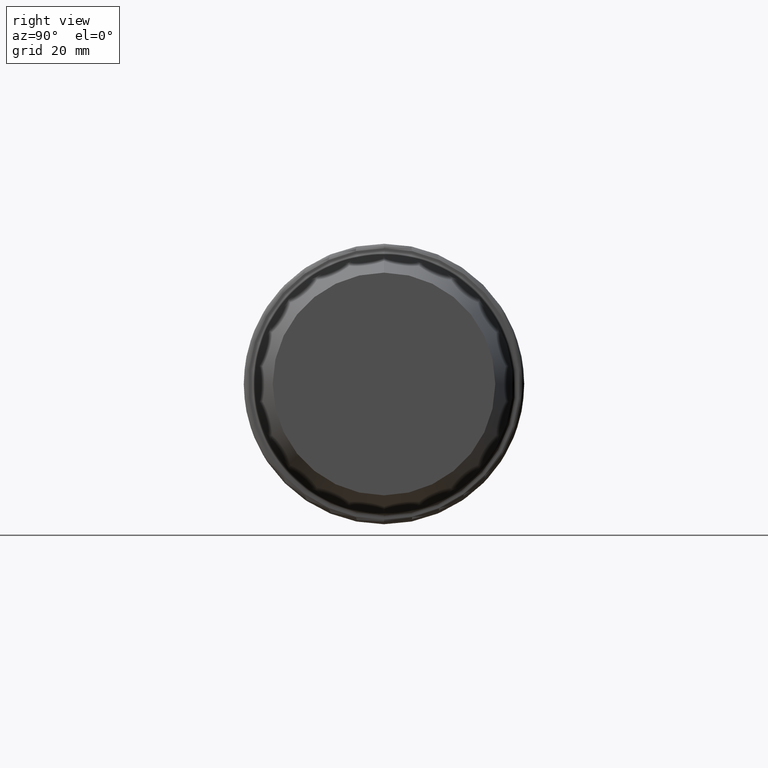
[diagram: clean part render]
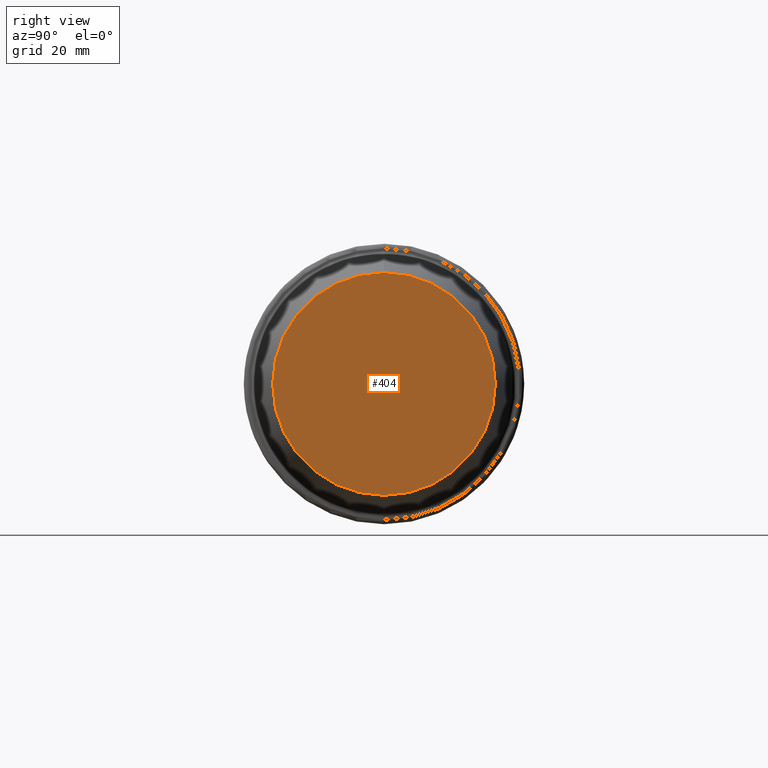
[diagram: same view with one face highlighted and labeled with its STEP entity id]
A machine part, right view. The second image highlights one B-rep face of the part: STEP entity #404.
In plain terms, the highlighted planar face has unit normal (-1, 0, 0).
Its self-contained STEP definition (entity closure, byte-faithful):
#26 = CARTESIAN_POINT ( 'NONE',  ( 99.99999989636121711, 0.000000000000000000, 0.000000000000000000 ) ) ;
#36 = EDGE_LOOP ( 'NONE', ( #325, #141 ) ) ;
#64 = DIRECTION ( 'NONE',  ( -1.000000000000000000, 0.000000000000000000, 0.000000000000000000 ) ) ;
#92 = CIRCLE ( 'NONE', #456, 24.99999997733834434 ) ;
#131 = PLANE ( 'NONE',  #338 ) ;
#141 = ORIENTED_EDGE ( 'NONE', *, *, #410, .F. ) ;
#209 = DIRECTION ( 'NONE',  ( 0.000000000000000000, 0.000000000000000000, 1.000000000000000000 ) ) ;
#219 = CARTESIAN_POINT ( 'NONE',  ( 99.99999989636121711, 3.303567055374164118E-15, -24.99999997733834434 ) ) ;
#225 = EDGE_CURVE ( 'NONE', #228, #275, #343, .T. ) ;
#228 = VERTEX_POINT ( 'NONE', #312 ) ;
#252 = CARTESIAN_POINT ( 'NONE',  ( 99.99999989636121711, 0.000000000000000000, 0.000000000000000000 ) ) ;
#253 = DIRECTION ( 'NONE',  ( -1.000000000000000000, 0.000000000000000000, 0.000000000000000000 ) ) ;
#260 = DIRECTION ( 'NONE',  ( 0.000000000000000000, 0.000000000000000000, 1.000000000000000000 ) ) ;
#275 = VERTEX_POINT ( 'NONE', #219 ) ;
#292 = AXIS2_PLACEMENT_3D ( 'NONE', #26, #64, #260 ) ;
#312 = CARTESIAN_POINT ( 'NONE',  ( 99.99999989636121711, 0.000000000000000000, 24.99999997733834434 ) ) ;
#325 = ORIENTED_EDGE ( 'NONE', *, *, #225, .F. ) ;
#338 = AXIS2_PLACEMENT_3D ( 'NONE', #252, #429, #209 ) ;
#343 = CIRCLE ( 'NONE', #292, 24.99999997733834434 ) ;
#393 = CARTESIAN_POINT ( 'NONE',  ( 99.99999989636121711, 0.000000000000000000, 0.000000000000000000 ) ) ;
#404 = ADVANCED_FACE ( 'NONE', ( #471 ), #131, .F. ) ;
#410 = EDGE_CURVE ( 'NONE', #275, #228, #92, .T. ) ;
#429 = DIRECTION ( 'NONE',  ( -1.000000000000000000, 0.000000000000000000, 0.000000000000000000 ) ) ;
#432 = DIRECTION ( 'NONE',  ( 0.000000000000000000, 0.000000000000000000, 1.000000000000000000 ) ) ;
#456 = AXIS2_PLACEMENT_3D ( 'NONE', #393, #253, #432 ) ;
#471 = FACE_OUTER_BOUND ( 'NONE', #36, .T. ) ;